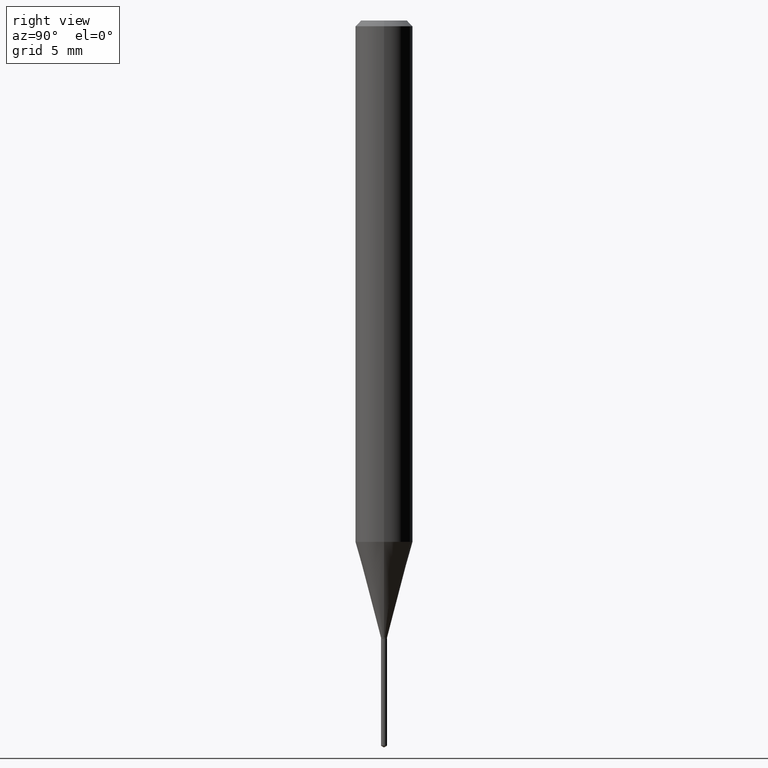
[diagram: clean part render]
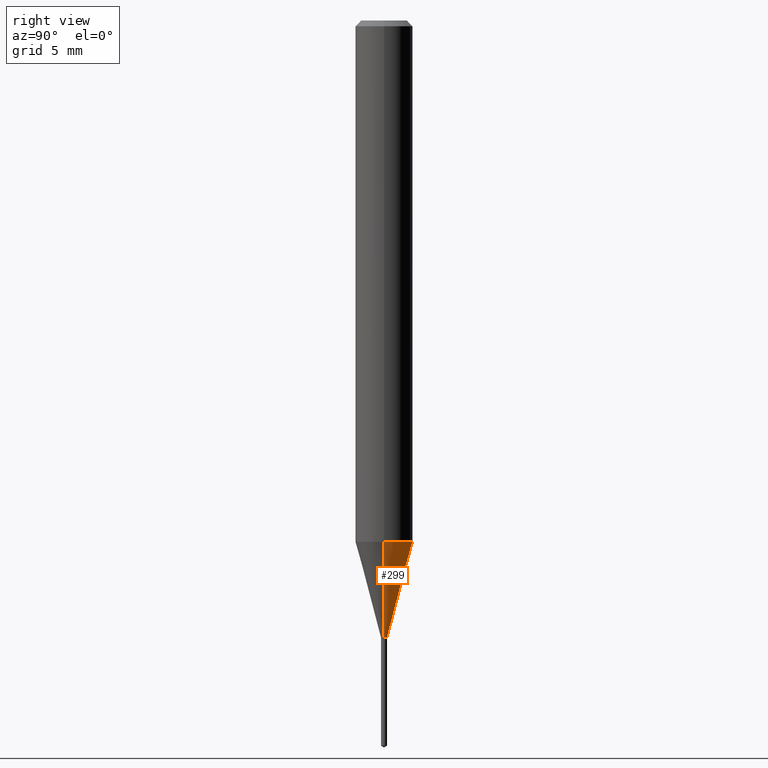
[diagram: same view with one face highlighted and labeled with its STEP entity id]
A machine part, right view. The second image highlights one B-rep face of the part: STEP entity #299.
In plain terms, the highlighted conical surface has half-angle 15 deg.
Its self-contained STEP definition (entity closure, byte-faithful):
#14 = ORIENTED_EDGE ( 'NONE', *, *, #115, .F. ) ;
#16 = CIRCLE ( 'NONE', #106, 0.05905000000000013710 ) ;
#47 = VECTOR ( 'NONE', #231, 39.37007874015747433 ) ;
#86 = CARTESIAN_POINT ( 'NONE',  ( 3.105256290093886268E-29, -4.433483004063025590E-15, -1.269800000000000040 ) ) ;
#92 = ORIENTED_EDGE ( 'NONE', *, *, #323, .T. ) ;
#106 = AXIS2_PLACEMENT_3D ( 'NONE', #489, #449, #146 ) ;
#114 = AXIS2_PLACEMENT_3D ( 'NONE', #86, #272, #425 ) ;
#115 = EDGE_CURVE ( 'NONE', #289, #440, #16, .T. ) ;
#132 = ORIENTED_EDGE ( 'NONE', *, *, #349, .T. ) ;
#139 = VERTEX_POINT ( 'NONE', #184 ) ;
#146 = DIRECTION ( 'NONE',  ( 1.000000000000000000, -6.982962677686264344E-15, 0.000000000000000000 ) ) ;
#162 = CONICAL_SURFACE ( 'NONE', #401, 0.006300000000000000044, 0.2617993877991500740 ) ;
#184 = CARTESIAN_POINT ( 'NONE',  ( -0.006300000000000000044, -4.391162848647330369E-15, -1.269800000000000040 ) ) ;
#191 = DIRECTION ( 'NONE',  ( -0.2588190451025213501, 5.211531920934551042E-15, 0.9659258262890682012 ) ) ;
#220 = FACE_OUTER_BOUND ( 'NONE', #422, .T. ) ;
#231 = DIRECTION ( 'NONE',  ( 0.2588190451025213501, 1.565188264969621968E-15, 0.9659258262890682012 ) ) ;
#243 = CARTESIAN_POINT ( 'NONE',  ( -0.006300000000000000044, -4.388718811710139476E-15, -1.269800000000000040 ) ) ;
#261 = CARTESIAN_POINT ( 'NONE',  ( 0.006300000000000000044, -4.477475668932449058E-15, -1.269800000000000040 ) ) ;
#269 = VERTEX_POINT ( 'NONE', #261 ) ;
#270 = CARTESIAN_POINT ( 'NONE',  ( 0.006300000000000000044, -4.477475668932449058E-15, -1.269800000000000040 ) ) ;
#272 = DIRECTION ( 'NONE',  ( -2.445468806185136597E-29, 3.491481338843145583E-15, 1.000000000000000000 ) ) ;
#289 = VERTEX_POINT ( 'NONE', #446 ) ;
#299 = ADVANCED_FACE ( 'NONE', ( #220 ), #162, .T. ) ;
#300 = CARTESIAN_POINT ( 'NONE',  ( -0.05905000000000014404, -3.326554670271460778E-15, -1.072934319900741729 ) ) ;
#305 = LINE ( 'NONE', #243, #466 ) ;
#320 = CIRCLE ( 'NONE', #114, 0.006300000000000000044 ) ;
#323 = EDGE_CURVE ( 'NONE', #139, #440, #305, .T. ) ;
#330 = EDGE_CURVE ( 'NONE', #269, #289, #338, .T. ) ;
#333 = DIRECTION ( 'NONE',  ( 1.000000000000000000, -6.982962677686194135E-15, 0.000000000000000000 ) ) ;
#338 = LINE ( 'NONE', #270, #47 ) ;
#349 = EDGE_CURVE ( 'NONE', #269, #139, #320, .T. ) ;
#367 = CARTESIAN_POINT ( 'NONE',  ( 3.105256290093886268E-29, -4.433483004063025590E-15, -1.269800000000000040 ) ) ;
#401 = AXIS2_PLACEMENT_3D ( 'NONE', #367, #406, #333 ) ;
#406 = DIRECTION ( 'NONE',  ( -2.445468806185136597E-29, 3.491481338843145583E-15, 1.000000000000000000 ) ) ;
#422 = EDGE_LOOP ( 'NONE', ( #132, #92, #14, #482 ) ) ;
#425 = DIRECTION ( 'NONE',  ( 1.000000000000000000, -6.982962677686194135E-15, 0.000000000000000000 ) ) ;
#440 = VERTEX_POINT ( 'NONE', #300 ) ;
#446 = CARTESIAN_POINT ( 'NONE',  ( 0.05905000000000014404, -4.158474101855175191E-15, -1.072934319900741729 ) ) ;
#449 = DIRECTION ( 'NONE',  ( -2.445468806185136597E-29, 3.491481338843145583E-15, 1.000000000000000000 ) ) ;
#466 = VECTOR ( 'NONE', #191, 39.37007874015747433 ) ;
#482 = ORIENTED_EDGE ( 'NONE', *, *, #330, .F. ) ;
#489 = CARTESIAN_POINT ( 'NONE',  ( 2.623827410402727989E-29, -3.746130155737801060E-15, -1.072934319900741729 ) ) ;